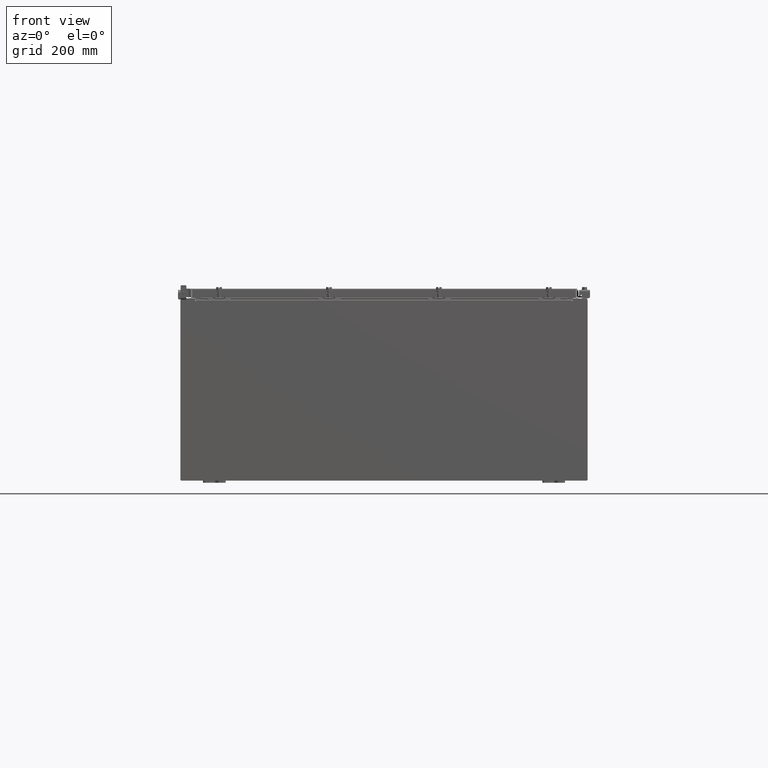
[diagram: clean part render]
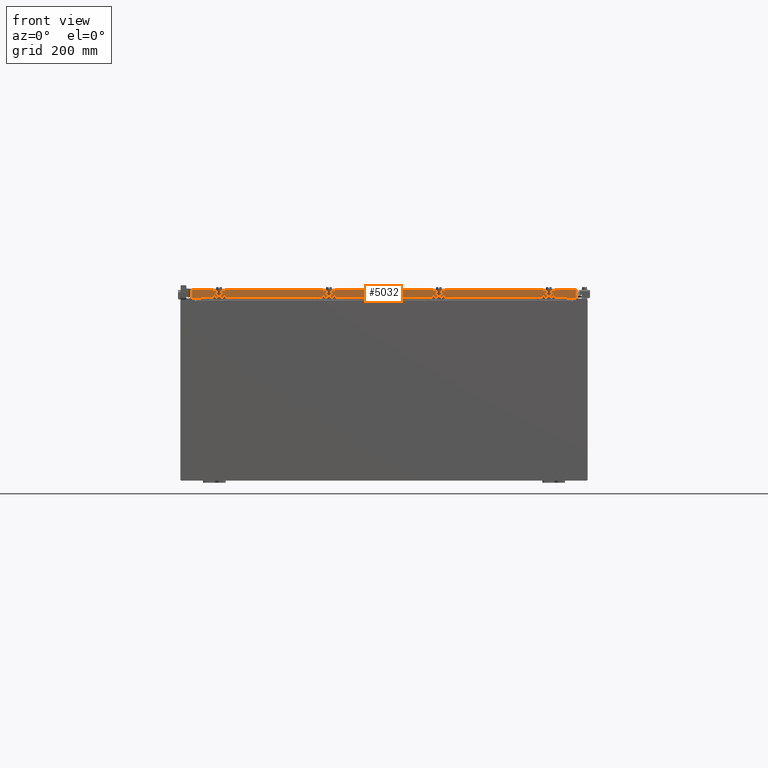
[diagram: same view with one face highlighted and labeled with its STEP entity id]
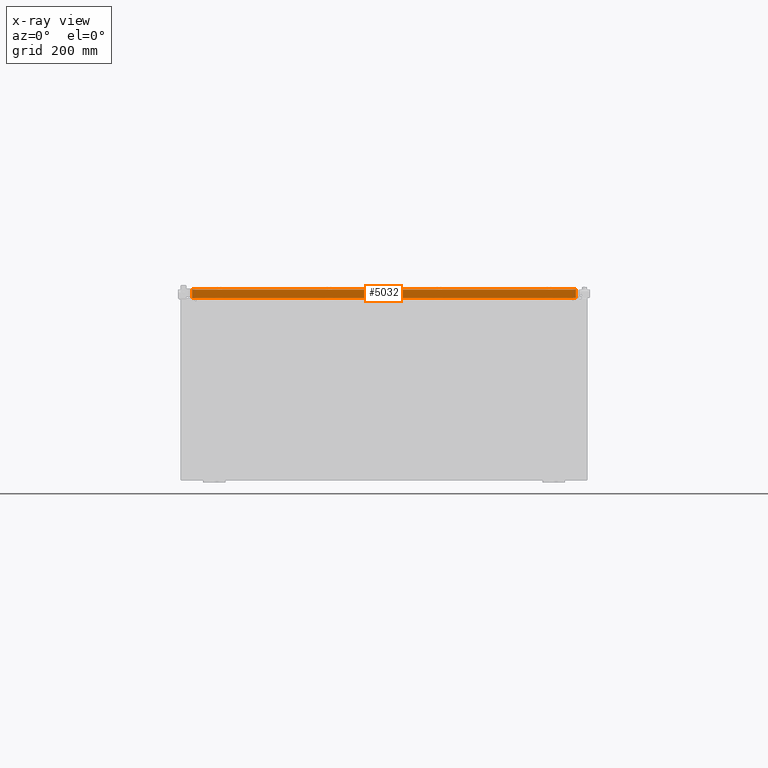
[diagram: x-ray of the same camera — body ghosted, the highlighted face saturated]
A machine part, front view. The second image highlights one B-rep face of the part: STEP entity #5032.
The next image is the same camera in x-ray: the body ghosted, the highlighted face saturated — about 0% of this face is hidden behind the body in this view.
In plain terms, the highlighted planar face has unit normal (0, 1, 0).
Its self-contained STEP definition (entity closure, byte-faithful):
#428 = CARTESIAN_POINT ( 'NONE',  ( 16.98915786437627100, -23.09399999999999400, -0.08769999999999589200 ) ) ;
#1270 = DIRECTION ( 'NONE',  ( -0.0000000000000000000, 3.607333059089402100E-031, -1.000000000000000000 ) ) ;
#1562 = LINE ( 'NONE', #5449, #12060 ) ;
#2115 = CARTESIAN_POINT ( 'NONE',  ( 17.07800000000000300, -23.09399999999999400, -0.08769999999999589200 ) ) ;
#2275 = VECTOR ( 'NONE', #13120, 39.37007874015748100 ) ;
#3882 = VERTEX_POINT ( 'NONE', #13154 ) ;
#3913 = FACE_OUTER_BOUND ( 'NONE', #6057, .T. ) ;
#4512 = ORIENTED_EDGE ( 'NONE', *, *, #21339, .F. ) ;
#4711 = CARTESIAN_POINT ( 'NONE',  ( -16.98915786437626700, -23.09399999999999400, 0.0000000000000000000 ) ) ;
#4859 = CARTESIAN_POINT ( 'NONE',  ( -16.98915786437626700, -23.09399999999999400, -0.8499999999999955400 ) ) ;
#5032 = ADVANCED_FACE ( 'NONE', ( #3913 ), #23840, .F. ) ;
#5449 = CARTESIAN_POINT ( 'NONE',  ( 16.98915786437627100, -23.09399999999999400, -0.07470000000000015500 ) ) ;
#5607 = LINE ( 'NONE', #2115, #10538 ) ;
#6057 = EDGE_LOOP ( 'NONE', ( #4512, #6726, #22902, #19796, #9461, #7742 ) ) ;
#6726 = ORIENTED_EDGE ( 'NONE', *, *, #12763, .T. ) ;
#7345 = VERTEX_POINT ( 'NONE', #4859 ) ;
#7742 = ORIENTED_EDGE ( 'NONE', *, *, #14409, .F. ) ;
#7974 = LINE ( 'NONE', #22097, #12926 ) ;
#8541 = VERTEX_POINT ( 'NONE', #9675 ) ;
#8806 = VERTEX_POINT ( 'NONE', #428 ) ;
#9461 = ORIENTED_EDGE ( 'NONE', *, *, #24398, .F. ) ;
#9595 = AXIS2_PLACEMENT_3D ( 'NONE', #25248, #25396, #25431 ) ;
#9675 = CARTESIAN_POINT ( 'NONE',  ( 16.23915786437626700, -23.09400000000000100, -0.8499999999999977600 ) ) ;
#10538 = VECTOR ( 'NONE', #23150, 39.37007874015748100 ) ;
#11128 = DIRECTION ( 'NONE',  ( -1.000000000000000000, 1.279703943630056600E-016, 1.239713195391617400E-016 ) ) ;
#12060 = VECTOR ( 'NONE', #1270, 39.37007874015748100 ) ;
#12310 = DIRECTION ( 'NONE',  ( -1.000000000000000000, 1.279703943630056600E-016, 1.239713195391617400E-016 ) ) ;
#12763 = EDGE_CURVE ( 'NONE', #3882, #7345, #24089, .T. ) ;
#12926 = VECTOR ( 'NONE', #24210, 39.37007874015748100 ) ;
#13120 = DIRECTION ( 'NONE',  ( 0.0000000000000000000, 3.607333059089402100E-031, -1.000000000000000000 ) ) ;
#13154 = CARTESIAN_POINT ( 'NONE',  ( -16.98915786437626700, -23.09399999999999400, -0.08769999999999589200 ) ) ;
#13235 = CARTESIAN_POINT ( 'NONE',  ( 17.07800000000000300, -23.09400000000000100, -0.8499999999999999800 ) ) ;
#14154 = CARTESIAN_POINT ( 'NONE',  ( 16.98915786437627100, -23.09399999999999400, -0.8499999999999999800 ) ) ;
#14271 = LINE ( 'NONE', #13235, #19289 ) ;
#14409 = EDGE_CURVE ( 'NONE', #8806, #15119, #1562, .T. ) ;
#14420 = CARTESIAN_POINT ( 'NONE',  ( 17.07800000000000300, -23.09400000000000100, -0.8499999999999999800 ) ) ;
#15119 = VERTEX_POINT ( 'NONE', #14154 ) ;
#16757 = EDGE_CURVE ( 'NONE', #8541, #21159, #7974, .T. ) ;
#18116 = LINE ( 'NONE', #14420, #24382 ) ;
#19232 = EDGE_CURVE ( 'NONE', #21159, #7345, #14271, .T. ) ;
#19289 = VECTOR ( 'NONE', #11128, 39.37007874015748100 ) ;
#19796 = ORIENTED_EDGE ( 'NONE', *, *, #16757, .F. ) ;
#21159 = VERTEX_POINT ( 'NONE', #26840 ) ;
#21339 = EDGE_CURVE ( 'NONE', #3882, #8806, #5607, .T. ) ;
#22097 = CARTESIAN_POINT ( 'NONE',  ( 16.23915786437626700, -23.09400000000000100, -0.8499999999999977600 ) ) ;
#22902 = ORIENTED_EDGE ( 'NONE', *, *, #19232, .F. ) ;
#23150 = DIRECTION ( 'NONE',  ( 1.000000000000000000, -1.279703943630056600E-016, 1.368455531567204500E-048 ) ) ;
#23840 = PLANE ( 'NONE',  #9595 ) ;
#24089 = LINE ( 'NONE', #4711, #2275 ) ;
#24210 = DIRECTION ( 'NONE',  ( -1.000000000000000000, 0.0000000000000000000, 0.0000000000000000000 ) ) ;
#24382 = VECTOR ( 'NONE', #12310, 39.37007874015748100 ) ;
#24398 = EDGE_CURVE ( 'NONE', #15119, #8541, #18116, .T. ) ;
#25248 = CARTESIAN_POINT ( 'NONE',  ( -2.953810643149484600E-015, -23.09399999999999400, 0.0000000000000000000 ) ) ;
#25396 = DIRECTION ( 'NONE',  ( 1.279703943630056600E-016, 1.000000000000000000, 3.607333059089401300E-031 ) ) ;
#25431 = DIRECTION ( 'NONE',  ( -1.000000000000000000, 1.279703943630056600E-016, 0.0000000000000000000 ) ) ;
#26840 = CARTESIAN_POINT ( 'NONE',  ( -16.23915786437626400, -23.09400000000000100, -0.8499999999999977600 ) ) ;